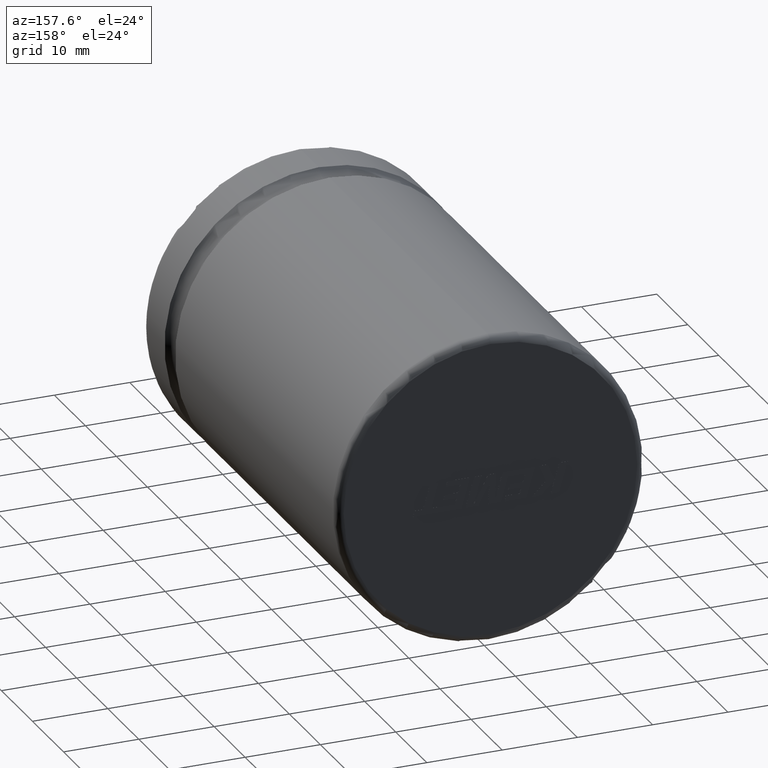
[diagram: clean part render]
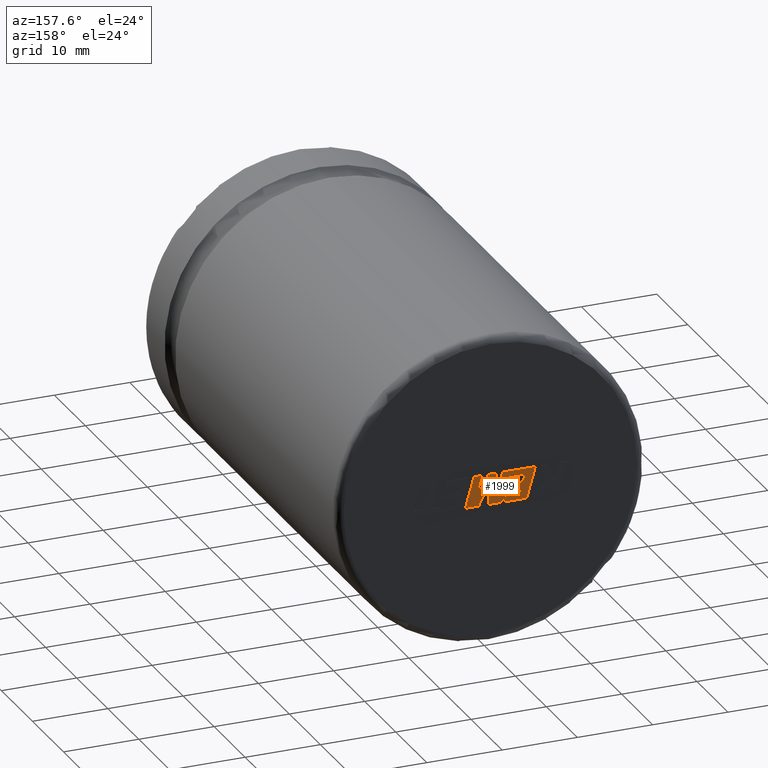
[diagram: same view with one face highlighted and labeled with its STEP entity id]
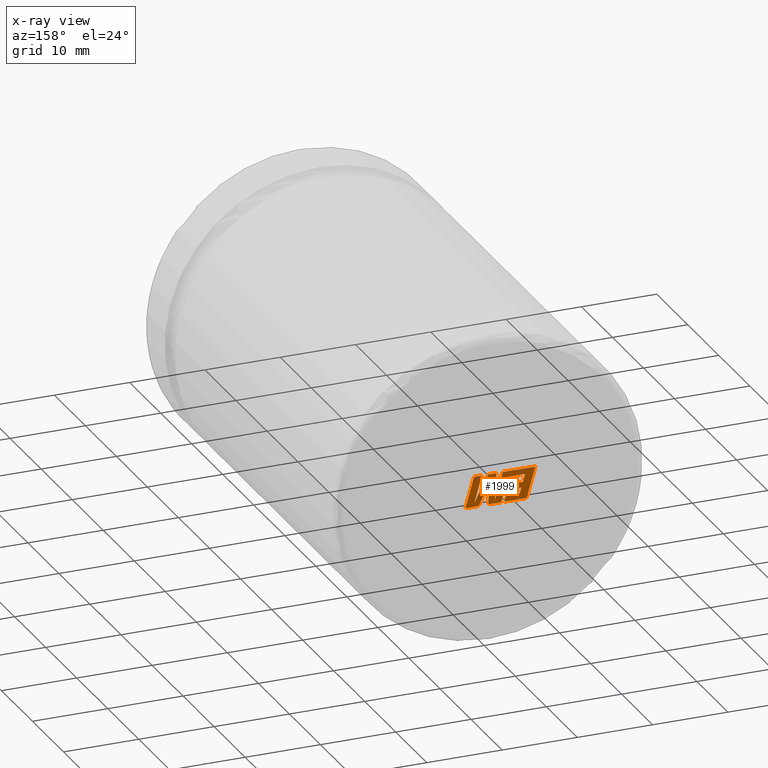
[diagram: x-ray of the same camera — body ghosted, the highlighted face saturated]
A machine part, auxiliary view. The second image highlights one B-rep face of the part: STEP entity #1999.
The next image is the same camera in x-ray: the body ghosted, the highlighted face saturated — about 0% of this face is hidden behind the body in this view.
In plain terms, the highlighted planar face has unit normal (0, -1, -0).
Its self-contained STEP definition (entity closure, byte-faithful):
#118 = EDGE_CURVE ( 'NONE', #2264, #2005, #13679, .T. ) ;
#126 = CARTESIAN_POINT ( 'NONE',  ( -1.621331405010768100, 62.00499999999999500, 2.009000000000000300 ) ) ;
#183 = EDGE_CURVE ( 'NONE', #11725, #2264, #9033, .T. ) ;
#287 = LINE ( 'NONE', #126, #7107 ) ;
#325 = CARTESIAN_POINT ( 'NONE',  ( -2.368776544254627100, 62.00499999999999500, -0.5057667556921767700 ) ) ;
#371 = DIRECTION ( 'NONE',  ( -0.05596501978068303000, 0.0000000000000000000, 0.9984327301130245800 ) ) ;
#519 = LINE ( 'NONE', #325, #7179 ) ;
#523 = CARTESIAN_POINT ( 'NONE',  ( -4.312160888083113300, 62.00499999999999500, 0.2396676425001874300 ) ) ;
#538 = EDGE_CURVE ( 'NONE', #3834, #8075, #1548, .T. ) ;
#633 = CARTESIAN_POINT ( 'NONE',  ( -0.5905797502759012600, 62.00499999999999500, -1.580852869611435700 ) ) ;
#737 = EDGE_CURVE ( 'NONE', #10317, #11725, #10078, .T. ) ;
#760 = LINE ( 'NONE', #11309, #7615 ) ;
#998 = EDGE_CURVE ( 'NONE', #8727, #2597, #5596, .T. ) ;
#1330 = VECTOR ( 'NONE', #2673, 1000.000000000000000 ) ;
#1341 = CARTESIAN_POINT ( 'NONE',  ( -0.5905797502759012600, 62.00499999999999500, -1.580852869611435700 ) ) ;
#1360 = DIRECTION ( 'NONE',  ( -1.000000000000000000, 0.0000000000000000000, 0.0000000000000000000 ) ) ;
#1548 = LINE ( 'NONE', #7462, #8519 ) ;
#1571 = ORIENTED_EDGE ( 'NONE', *, *, #14049, .T. ) ;
#1643 = LINE ( 'NONE', #6235, #7076 ) ;
#1868 = LINE ( 'NONE', #10433, #2212 ) ;
#1925 = CARTESIAN_POINT ( 'NONE',  ( 0.2831744625767413900, 62.00499999999999500, 2.009000000000000300 ) ) ;
#1932 = EDGE_CURVE ( 'NONE', #13557, #8714, #9953, .T. ) ;
#1999 = ADVANCED_FACE ( 'NONE', ( #13566 ), #13811, .F. ) ;
#2005 = VERTEX_POINT ( 'NONE', #5037 ) ;
#2058 = CARTESIAN_POINT ( 'NONE',  ( 2.176216635657580500, 62.00499999999999500, 2.009000000000000300 ) ) ;
#2105 = VECTOR ( 'NONE', #5605, 1000.000000000000000 ) ;
#2149 = CARTESIAN_POINT ( 'NONE',  ( -4.805026188039965600, 62.00499999999999500, -2.023302435020260400 ) ) ;
#2212 = VECTOR ( 'NONE', #12231, 1000.000000000000000 ) ;
#2218 = EDGE_CURVE ( 'NONE', #5626, #13557, #6364, .T. ) ;
#2264 = VERTEX_POINT ( 'NONE', #6790 ) ;
#2326 = EDGE_CURVE ( 'NONE', #13258, #11219, #3974, .T. ) ;
#2460 = CARTESIAN_POINT ( 'NONE',  ( -2.362425534903341600, 62.00499999999999500, 1.241852015734259200 ) ) ;
#2519 = VERTEX_POINT ( 'NONE', #523 ) ;
#2597 = VERTEX_POINT ( 'NONE', #12600 ) ;
#2625 = VERTEX_POINT ( 'NONE', #6406 ) ;
#2673 = DIRECTION ( 'NONE',  ( -1.000000000000000000, 0.0000000000000000000, 0.0000000000000000000 ) ) ;
#2932 = CARTESIAN_POINT ( 'NONE',  ( -3.881248580980486200, 62.00499999999999500, -1.255774371050570000 ) ) ;
#2937 = VERTEX_POINT ( 'NONE', #7771 ) ;
#2961 = CARTESIAN_POINT ( 'NONE',  ( 0.1382457451524730900, 62.00499999999999500, 0.8574262332882234300 ) ) ;
#3033 = EDGE_CURVE ( 'NONE', #2937, #7873, #1868, .T. ) ;
#3073 = EDGE_CURVE ( 'NONE', #2597, #2625, #7835, .T. ) ;
#3418 = CARTESIAN_POINT ( 'NONE',  ( -4.597711096710723300, 62.00499999999999500, 1.241852015734259200 ) ) ;
#3548 = VECTOR ( 'NONE', #9310, 1000.000000000000000 ) ;
#3662 = LINE ( 'NONE', #3418, #9294 ) ;
#3684 = ORIENTED_EDGE ( 'NONE', *, *, #7709, .T. ) ;
#3825 = ORIENTED_EDGE ( 'NONE', *, *, #8366, .T. ) ;
#3834 = VERTEX_POINT ( 'NONE', #10575 ) ;
#3864 = CARTESIAN_POINT ( 'NONE',  ( -1.826096280870711300, 62.00499999999999500, -2.023302435020260400 ) ) ;
#3876 = CARTESIAN_POINT ( 'NONE',  ( 3.335533317767130200, 62.00499999999999500, -2.023302435020264000 ) ) ;
#3924 = DIRECTION ( 'NONE',  ( 0.2793947940878328500, 0.0000000000000000000, -0.9601763114327583900 ) ) ;
#3974 = LINE ( 'NONE', #4510, #2105 ) ;
#4047 = VERTEX_POINT ( 'NONE', #10041 ) ;
#4048 = DIRECTION ( 'NONE',  ( -0.2760118818968552200, 0.0000000000000000000, 0.9611542233438691300 ) ) ;
#4079 = CARTESIAN_POINT ( 'NONE',  ( -0.7918013056177446400, 62.00499999999999500, 2.009000000000000300 ) ) ;
#4194 = LINE ( 'NONE', #2460, #10022 ) ;
#4244 = DIRECTION ( 'NONE',  ( 1.000000000000000000, 0.0000000000000000000, 0.0000000000000000000 ) ) ;
#4362 = DIRECTION ( 'NONE',  ( 0.2740217765954066100, 0.0000000000000000000, -0.9617234872620595800 ) ) ;
#4378 = CARTESIAN_POINT ( 'NONE',  ( 0.2933165664309074200, 62.00499999999999500, -2.023302435020260400 ) ) ;
#4462 = ORIENTED_EDGE ( 'NONE', *, *, #2218, .T. ) ;
#4510 = CARTESIAN_POINT ( 'NONE',  ( 1.566992894571485900, 62.00499999999999500, -2.023302435020264000 ) ) ;
#4629 = DIRECTION ( 'NONE',  ( -1.000000000000000000, 0.0000000000000000000, 0.0000000000000000000 ) ) ;
#4802 = VERTEX_POINT ( 'NONE', #11128 ) ;
#4890 = CARTESIAN_POINT ( 'NONE',  ( -1.423898382906036500, 62.00499999999999500, -2.023302435020260400 ) ) ;
#4905 = LINE ( 'NONE', #3864, #1330 ) ;
#4911 = VECTOR ( 'NONE', #11179, 1000.000000000000000 ) ;
#4934 = CARTESIAN_POINT ( 'NONE',  ( -1.621331405010768100, 62.00499999999999500, 2.009000000000000300 ) ) ;
#4945 = VECTOR ( 'NONE', #6295, 1000.000000000000100 ) ;
#5028 = ORIENTED_EDGE ( 'NONE', *, *, #8268, .T. ) ;
#5037 = CARTESIAN_POINT ( 'NONE',  ( 2.187398335539627600, 62.00499999999999500, -1.598140366132060100 ) ) ;
#5255 = LINE ( 'NONE', #9337, #7488 ) ;
#5365 = DIRECTION ( 'NONE',  ( 1.000000000000000000, 0.0000000000000000000, 0.0000000000000000000 ) ) ;
#5377 = DIRECTION ( 'NONE',  ( -0.2765379750249943900, 0.0000000000000000000, 0.9610029908221283700 ) ) ;
#5409 = EDGE_CURVE ( 'NONE', #13452, #13258, #13185, .T. ) ;
#5596 = LINE ( 'NONE', #2932, #3548 ) ;
#5605 = DIRECTION ( 'NONE',  ( -0.4443210308329211800, 0.0000000000000000000, 0.8958676361826953800 ) ) ;
#5626 = VERTEX_POINT ( 'NONE', #4378 ) ;
#5646 = CARTESIAN_POINT ( 'NONE',  ( -2.044090386040382100, 62.00499999999999500, -1.255774371050570000 ) ) ;
#6036 = ORIENTED_EDGE ( 'NONE', *, *, #7619, .T. ) ;
#6060 = EDGE_CURVE ( 'NONE', #2005, #3834, #11619, .T. ) ;
#6134 = CARTESIAN_POINT ( 'NONE',  ( 1.460276826278656500, 62.00499999999999500, 0.5733684290860386900 ) ) ;
#6235 = CARTESIAN_POINT ( 'NONE',  ( -4.312160888083113300, 62.00499999999999500, 0.2396676425001874300 ) ) ;
#6284 = ORIENTED_EDGE ( 'NONE', *, *, #183, .T. ) ;
#6287 = ORIENTED_EDGE ( 'NONE', *, *, #538, .T. ) ;
#6295 = DIRECTION ( 'NONE',  ( 0.4668459304955217500, 0.0000000000000000000, -0.8843386665637607000 ) ) ;
#6364 = LINE ( 'NONE', #11190, #8396 ) ;
#6406 = CARTESIAN_POINT ( 'NONE',  ( -1.826096280870711300, 62.00499999999999500, -2.023302435020260400 ) ) ;
#6483 = ORIENTED_EDGE ( 'NONE', *, *, #1932, .T. ) ;
#6522 = ORIENTED_EDGE ( 'NONE', *, *, #3033, .T. ) ;
#6546 = EDGE_LOOP ( 'NONE', ( #7198, #8574, #6036, #4462, #6483, #11593, #13618, #5028, #9636, #9983, #1571, #12479, #7374, #3684, #3825, #6522, #8705, #11537, #6284, #10111, #10854, #6287, #10156 ) ) ;
#6790 = CARTESIAN_POINT ( 'NONE',  ( 0.2831744625767413900, 62.00499999999999500, 2.009000000000000300 ) ) ;
#6842 = CARTESIAN_POINT ( 'NONE',  ( -1.423898382906036500, 62.00499999999999500, -2.023302435020260400 ) ) ;
#6870 = VECTOR ( 'NONE', #13704, 1000.000000000000100 ) ;
#6911 = LINE ( 'NONE', #8226, #10705 ) ;
#7017 = VERTEX_POINT ( 'NONE', #13637 ) ;
#7076 = VECTOR ( 'NONE', #10759, 1000.000000000000000 ) ;
#7078 = VERTEX_POINT ( 'NONE', #7355 ) ;
#7107 = VECTOR ( 'NONE', #12259, 1000.000000000000100 ) ;
#7179 = VECTOR ( 'NONE', #12305, 1000.000000000000000 ) ;
#7198 = ORIENTED_EDGE ( 'NONE', *, *, #5409, .T. ) ;
#7231 = DIRECTION ( 'NONE',  ( 0.05375259206908357400, 0.0000000000000000000, -0.9985542843760947300 ) ) ;
#7355 = CARTESIAN_POINT ( 'NONE',  ( -4.597711096710723300, 62.00499999999999500, 1.241852015734259200 ) ) ;
#7374 = ORIENTED_EDGE ( 'NONE', *, *, #3073, .T. ) ;
#7386 = CARTESIAN_POINT ( 'NONE',  ( -0.7918013056177446400, 62.00499999999999500, 2.009000000000000300 ) ) ;
#7462 = CARTESIAN_POINT ( 'NONE',  ( 1.151546256298412900, 62.00499999999999500, 2.009000000000000300 ) ) ;
#7488 = VECTOR ( 'NONE', #7231, 1000.000000000000100 ) ;
#7539 = CARTESIAN_POINT ( 'NONE',  ( 1.566992894571485900, 62.00499999999999500, -2.023302435020264000 ) ) ;
#7615 = VECTOR ( 'NONE', #3924, 1000.000000000000000 ) ;
#7619 = EDGE_CURVE ( 'NONE', #11219, #5626, #5255, .T. ) ;
#7669 = VECTOR ( 'NONE', #4048, 1000.000000000000200 ) ;
#7709 = EDGE_CURVE ( 'NONE', #2625, #12814, #4905, .T. ) ;
#7771 = CARTESIAN_POINT ( 'NONE',  ( -5.965360506162028300, 62.00499999999999500, 2.009000000000000300 ) ) ;
#7835 = LINE ( 'NONE', #5646, #4911 ) ;
#7873 = VERTEX_POINT ( 'NONE', #4934 ) ;
#8074 = DIRECTION ( 'NONE',  ( -1.000000000000000000, 0.0000000000000000000, 0.0000000000000000000 ) ) ;
#8075 = VERTEX_POINT ( 'NONE', #11212 ) ;
#8176 = CARTESIAN_POINT ( 'NONE',  ( -3.881248580980486200, 62.00499999999999500, -1.255774371050570000 ) ) ;
#8226 = CARTESIAN_POINT ( 'NONE',  ( -2.581694746187825900, 62.00499999999999500, 0.2396676425001874300 ) ) ;
#8268 = EDGE_CURVE ( 'NONE', #2519, #4047, #1643, .T. ) ;
#8366 = EDGE_CURVE ( 'NONE', #12814, #2937, #11737, .T. ) ;
#8396 = VECTOR ( 'NONE', #1360, 1000.000000000000000 ) ;
#8519 = VECTOR ( 'NONE', #4244, 1000.000000000000000 ) ;
#8536 = AXIS2_PLACEMENT_3D ( 'NONE', #6134, #10513, #11667 ) ;
#8574 = ORIENTED_EDGE ( 'NONE', *, *, #2326, .T. ) ;
#8639 = EDGE_CURVE ( 'NONE', #4047, #4802, #6911, .T. ) ;
#8705 = ORIENTED_EDGE ( 'NONE', *, *, #10928, .T. ) ;
#8714 = VERTEX_POINT ( 'NONE', #13606 ) ;
#8727 = VERTEX_POINT ( 'NONE', #8176 ) ;
#8844 = EDGE_CURVE ( 'NONE', #7078, #2519, #3662, .T. ) ;
#8855 = VECTOR ( 'NONE', #5365, 1000.000000000000000 ) ;
#9033 = LINE ( 'NONE', #7386, #8855 ) ;
#9102 = CARTESIAN_POINT ( 'NONE',  ( -4.805026188039965600, 62.00499999999999500, -2.023302435020260400 ) ) ;
#9218 = DIRECTION ( 'NONE',  ( 0.2746459304916903900, 0.0000000000000000000, -0.9615454294334477800 ) ) ;
#9294 = VECTOR ( 'NONE', #4362, 1000.000000000000100 ) ;
#9310 = DIRECTION ( 'NONE',  ( 1.000000000000000000, 0.0000000000000000000, 0.0000000000000000000 ) ) ;
#9337 = CARTESIAN_POINT ( 'NONE',  ( 0.1382457451524730900, 62.00499999999999500, 0.8574262332882234300 ) ) ;
#9635 = EDGE_CURVE ( 'NONE', #4802, #7017, #519, .T. ) ;
#9636 = ORIENTED_EDGE ( 'NONE', *, *, #8639, .T. ) ;
#9732 = VECTOR ( 'NONE', #13049, 1000.000000000000000 ) ;
#9953 = LINE ( 'NONE', #4890, #6870 ) ;
#9983 = ORIENTED_EDGE ( 'NONE', *, *, #9635, .T. ) ;
#10022 = VECTOR ( 'NONE', #4629, 1000.000000000000000 ) ;
#10041 = CARTESIAN_POINT ( 'NONE',  ( -2.581694746187825900, 62.00499999999999500, 0.2396676425001874300 ) ) ;
#10078 = LINE ( 'NONE', #1341, #11291 ) ;
#10111 = ORIENTED_EDGE ( 'NONE', *, *, #118, .T. ) ;
#10156 = ORIENTED_EDGE ( 'NONE', *, *, #13284, .T. ) ;
#10266 = VECTOR ( 'NONE', #8074, 1000.000000000000000 ) ;
#10317 = VERTEX_POINT ( 'NONE', #633 ) ;
#10433 = CARTESIAN_POINT ( 'NONE',  ( -5.965360506162028300, 62.00499999999999500, 2.009000000000000300 ) ) ;
#10513 = DIRECTION ( 'NONE',  ( 0.0000000000000000000, -1.000000000000000000, -0.0000000000000000000 ) ) ;
#10575 = CARTESIAN_POINT ( 'NONE',  ( 1.151546256298412900, 62.00499999999999500, 2.009000000000000300 ) ) ;
#10611 = CARTESIAN_POINT ( 'NONE',  ( 2.187398335539627600, 62.00499999999999500, -1.598140366132060100 ) ) ;
#10705 = VECTOR ( 'NONE', #9218, 1000.000000000000200 ) ;
#10759 = DIRECTION ( 'NONE',  ( 1.000000000000000000, 0.0000000000000000000, 0.0000000000000000000 ) ) ;
#10790 = LINE ( 'NONE', #2058, #9732 ) ;
#10854 = ORIENTED_EDGE ( 'NONE', *, *, #6060, .T. ) ;
#10928 = EDGE_CURVE ( 'NONE', #7873, #10317, #287, .T. ) ;
#11128 = CARTESIAN_POINT ( 'NONE',  ( -2.368776544254627100, 62.00499999999999500, -0.5057667556921767700 ) ) ;
#11179 = DIRECTION ( 'NONE',  ( 0.2732148821745956600, 0.0000000000000000000, -0.9619530280415576900 ) ) ;
#11190 = CARTESIAN_POINT ( 'NONE',  ( 0.2933165664309074200, 62.00499999999999500, -2.023302435020260400 ) ) ;
#11212 = CARTESIAN_POINT ( 'NONE',  ( 2.176216635657580500, 62.00499999999999500, 2.009000000000000300 ) ) ;
#11219 = VERTEX_POINT ( 'NONE', #2961 ) ;
#11291 = VECTOR ( 'NONE', #371, 1000.000000000000000 ) ;
#11309 = CARTESIAN_POINT ( 'NONE',  ( -4.099487898866470000, 62.00499999999999500, -0.5057667556921767700 ) ) ;
#11537 = ORIENTED_EDGE ( 'NONE', *, *, #737, .T. ) ;
#11593 = ORIENTED_EDGE ( 'NONE', *, *, #13869, .T. ) ;
#11619 = LINE ( 'NONE', #10611, #7669 ) ;
#11667 = DIRECTION ( 'NONE',  ( 0.0000000000000000000, 0.0000000000000000000, -1.000000000000000000 ) ) ;
#11725 = VERTEX_POINT ( 'NONE', #4079 ) ;
#11737 = LINE ( 'NONE', #2149, #14124 ) ;
#12231 = DIRECTION ( 'NONE',  ( 1.000000000000000000, 0.0000000000000000000, 0.0000000000000000000 ) ) ;
#12259 = DIRECTION ( 'NONE',  ( 0.2759782365590804400, 0.0000000000000000000, -0.9611638845408936300 ) ) ;
#12305 = DIRECTION ( 'NONE',  ( -1.000000000000000000, 0.0000000000000000000, 0.0000000000000000000 ) ) ;
#12474 = CARTESIAN_POINT ( 'NONE',  ( 3.335533317767130200, 62.00499999999999500, -2.023302435020264000 ) ) ;
#12479 = ORIENTED_EDGE ( 'NONE', *, *, #998, .T. ) ;
#12600 = CARTESIAN_POINT ( 'NONE',  ( -2.044090386040382100, 62.00499999999999500, -1.255774371050570000 ) ) ;
#12814 = VERTEX_POINT ( 'NONE', #9102 ) ;
#13049 = DIRECTION ( 'NONE',  ( 0.2763139702539113000, 0.0000000000000000000, -0.9610674221107073900 ) ) ;
#13185 = LINE ( 'NONE', #3876, #10266 ) ;
#13258 = VERTEX_POINT ( 'NONE', #7539 ) ;
#13284 = EDGE_CURVE ( 'NONE', #8075, #13452, #10790, .T. ) ;
#13452 = VERTEX_POINT ( 'NONE', #12474 ) ;
#13557 = VERTEX_POINT ( 'NONE', #6842 ) ;
#13566 = FACE_OUTER_BOUND ( 'NONE', #6546, .T. ) ;
#13606 = CARTESIAN_POINT ( 'NONE',  ( -2.362425534903341600, 62.00499999999999500, 1.241852015734259200 ) ) ;
#13618 = ORIENTED_EDGE ( 'NONE', *, *, #8844, .T. ) ;
#13637 = CARTESIAN_POINT ( 'NONE',  ( -4.099487898866470000, 62.00499999999999500, -0.5057667556921767700 ) ) ;
#13679 = LINE ( 'NONE', #1925, #4945 ) ;
#13704 = DIRECTION ( 'NONE',  ( -0.2762517575166150200, 0.0000000000000000000, 0.9610853065513910200 ) ) ;
#13811 = PLANE ( 'NONE',  #8536 ) ;
#13869 = EDGE_CURVE ( 'NONE', #8714, #7078, #4194, .T. ) ;
#14049 = EDGE_CURVE ( 'NONE', #7017, #8727, #760, .T. ) ;
#14124 = VECTOR ( 'NONE', #5377, 999.9999999999998900 ) ;